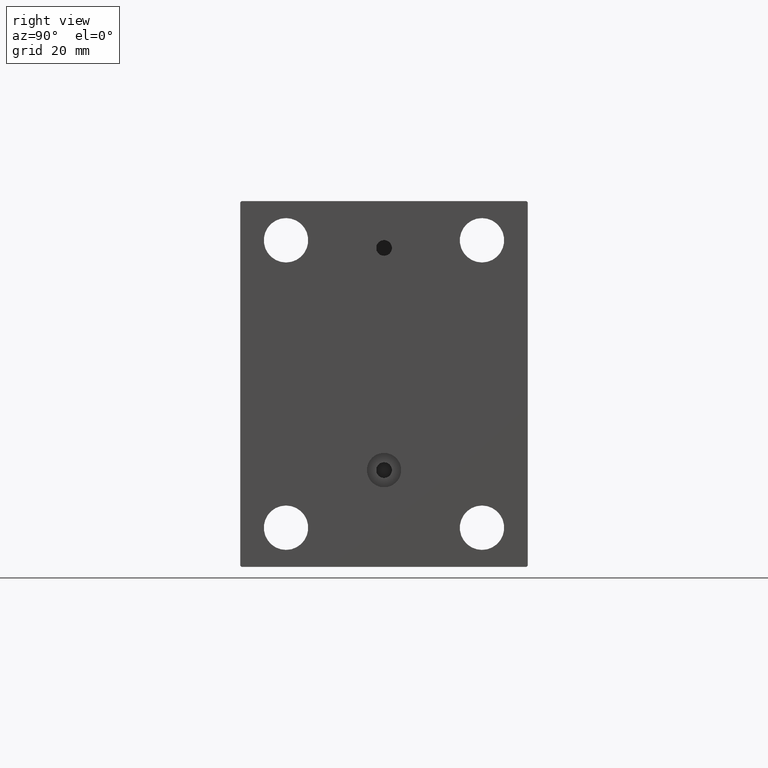
[diagram: clean part render]
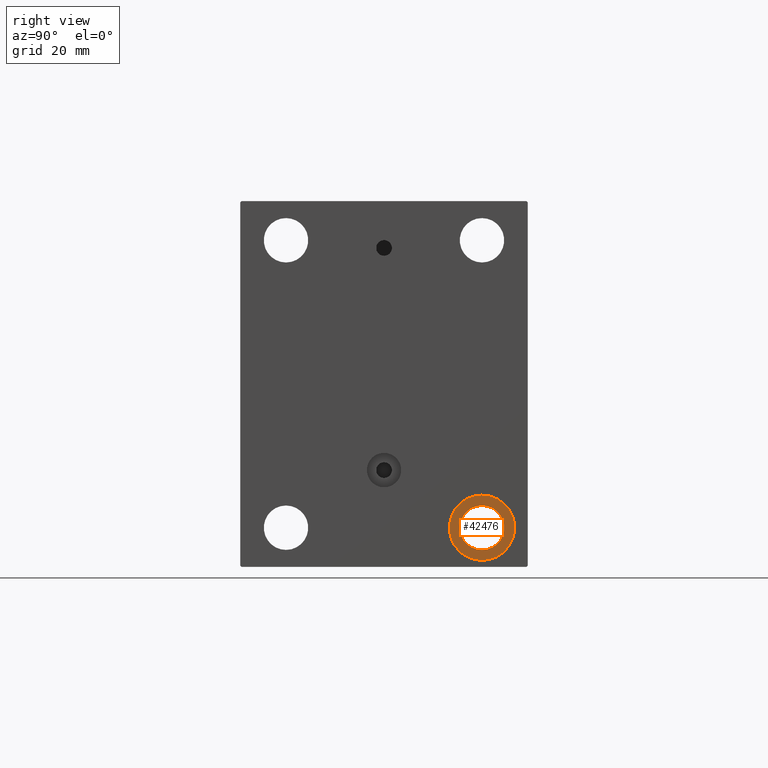
[diagram: same view with one face highlighted and labeled with its STEP entity id]
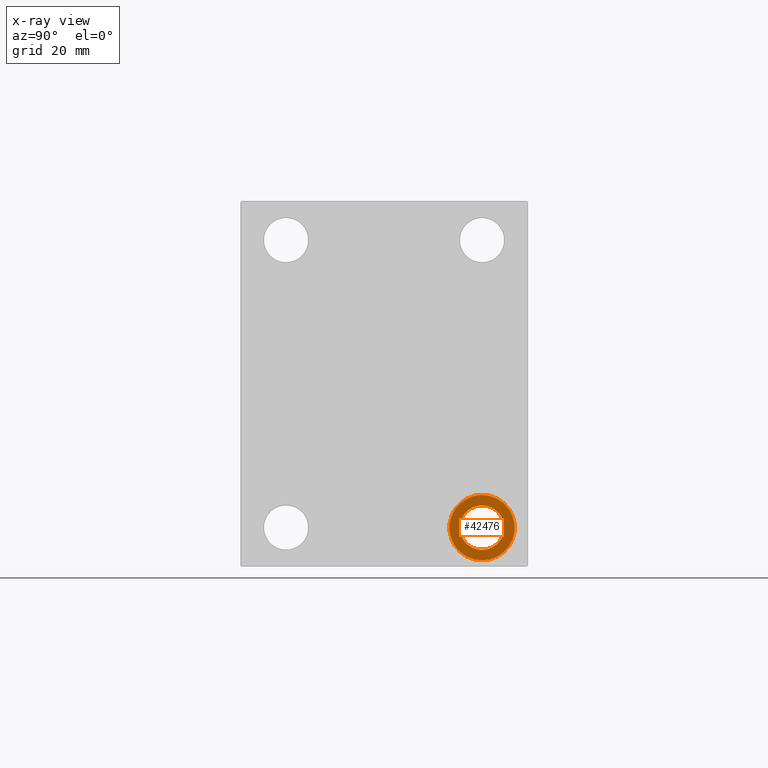
[diagram: x-ray of the same camera — body ghosted, the highlighted face saturated]
A machine part, right view. The second image highlights one B-rep face of the part: STEP entity #42476.
The next image is the same camera in x-ray: the body ghosted, the highlighted face saturated — about 0% of this face is hidden behind the body in this view.
In plain terms, the highlighted planar face has unit normal (1, 0, 0).
Its self-contained STEP definition (entity closure, byte-faithful):
#1197 = CARTESIAN_POINT ( 'NONE',  ( 126.0000000000000000, 37.49999999999997868, -54.99999999999999289 ) ) ;
#2725 = CARTESIAN_POINT ( 'NONE',  ( 126.0000000000000000, 37.49999999999997868, -54.99999999999999289 ) ) ;
#3889 = DIRECTION ( 'NONE',  ( 1.000000000000000000, 0.000000000000000000, -0.000000000000000000 ) ) ;
#4731 = VERTEX_POINT ( 'NONE', #27090 ) ;
#4876 = DIRECTION ( 'NONE',  ( -1.000000000000000000, -0.000000000000000000, -0.000000000000000000 ) ) ;
#5065 = CIRCLE ( 'NONE', #26404, 12.49999999999999645 ) ;
#5315 = ORIENTED_EDGE ( 'NONE', *, *, #45350, .F. ) ;
#10281 = DIRECTION ( 'NONE',  ( -1.000000000000000000, -0.000000000000000000, -0.000000000000000000 ) ) ;
#10545 = CARTESIAN_POINT ( 'NONE',  ( 126.0000000000000000, 37.49999999999997868, -46.50000000000000000 ) ) ;
#10573 = CARTESIAN_POINT ( 'NONE',  ( 126.0000000000000000, 37.49999999999997868, -54.99999999999999289 ) ) ;
#10799 = PLANE ( 'NONE',  #35601 ) ;
#11055 = EDGE_CURVE ( 'NONE', #42770, #36455, #37310, .T. ) ;
#15998 = EDGE_CURVE ( 'NONE', #31516, #4731, #5065, .T. ) ;
#19499 = CIRCLE ( 'NONE', #45230, 12.49999999999999645 ) ;
#19562 = CARTESIAN_POINT ( 'NONE',  ( 126.0000000000000000, 37.49999999999997868, -42.49999999999999289 ) ) ;
#20924 = AXIS2_PLACEMENT_3D ( 'NONE', #21355, #35381, #21127 ) ;
#21127 = DIRECTION ( 'NONE',  ( 0.000000000000000000, 0.000000000000000000, -1.000000000000000000 ) ) ;
#21355 = CARTESIAN_POINT ( 'NONE',  ( 126.0000000000000000, 37.49999999999997868, -54.99999999999999289 ) ) ;
#21424 = CARTESIAN_POINT ( 'NONE',  ( 126.0000000000000000, 37.49999999999997868, -54.99999999999999289 ) ) ;
#22493 = CARTESIAN_POINT ( 'NONE',  ( 126.0000000000000000, 37.49999999999997868, -63.49999999999998579 ) ) ;
#23666 = EDGE_LOOP ( 'NONE', ( #5315, #28660 ) ) ;
#23756 = ORIENTED_EDGE ( 'NONE', *, *, #11055, .T. ) ;
#24355 = DIRECTION ( 'NONE',  ( 0.000000000000000000, 0.000000000000000000, 1.000000000000000000 ) ) ;
#24416 = DIRECTION ( 'NONE',  ( 0.000000000000000000, 0.000000000000000000, 1.000000000000000000 ) ) ;
#26404 = AXIS2_PLACEMENT_3D ( 'NONE', #2725, #10281, #24355 ) ;
#27090 = CARTESIAN_POINT ( 'NONE',  ( 126.0000000000000000, 37.49999999999997868, -67.49999999999998579 ) ) ;
#28303 = FACE_OUTER_BOUND ( 'NONE', #23666, .T. ) ;
#28660 = ORIENTED_EDGE ( 'NONE', *, *, #15998, .F. ) ;
#29848 = ORIENTED_EDGE ( 'NONE', *, *, #41803, .T. ) ;
#31516 = VERTEX_POINT ( 'NONE', #19562 ) ;
#35381 = DIRECTION ( 'NONE',  ( -1.000000000000000000, -0.000000000000000000, -0.000000000000000000 ) ) ;
#35445 = DIRECTION ( 'NONE',  ( 0.000000000000000000, 0.000000000000000000, 1.000000000000000000 ) ) ;
#35601 = AXIS2_PLACEMENT_3D ( 'NONE', #21424, #3889, #35445 ) ;
#36455 = VERTEX_POINT ( 'NONE', #10545 ) ;
#36654 = EDGE_LOOP ( 'NONE', ( #29848, #23756 ) ) ;
#37310 = CIRCLE ( 'NONE', #40225, 8.499999999999992895 ) ;
#40225 = AXIS2_PLACEMENT_3D ( 'NONE', #1197, #4876, #42880 ) ;
#41803 = EDGE_CURVE ( 'NONE', #36455, #42770, #44389, .T. ) ;
#42347 = FACE_BOUND ( 'NONE', #36654, .T. ) ;
#42476 = ADVANCED_FACE ( 'NONE', ( #28303, #42347 ), #10799, .T. ) ;
#42770 = VERTEX_POINT ( 'NONE', #22493 ) ;
#42880 = DIRECTION ( 'NONE',  ( 0.000000000000000000, 0.000000000000000000, -1.000000000000000000 ) ) ;
#44389 = CIRCLE ( 'NONE', #20924, 8.499999999999992895 ) ;
#45230 = AXIS2_PLACEMENT_3D ( 'NONE', #10573, #45363, #24416 ) ;
#45350 = EDGE_CURVE ( 'NONE', #4731, #31516, #19499, .T. ) ;
#45363 = DIRECTION ( 'NONE',  ( -1.000000000000000000, -0.000000000000000000, -0.000000000000000000 ) ) ;